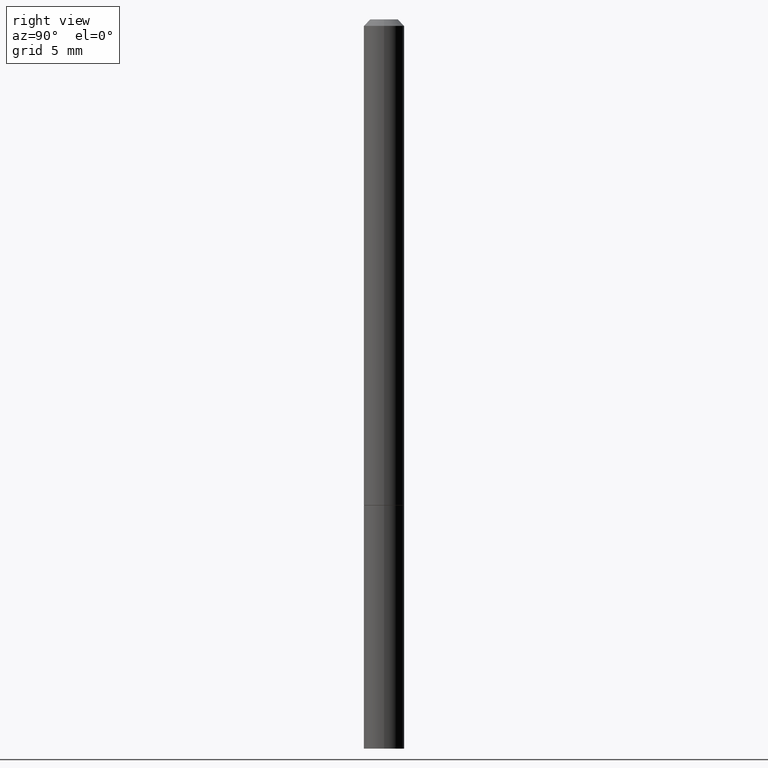
[diagram: clean part render]
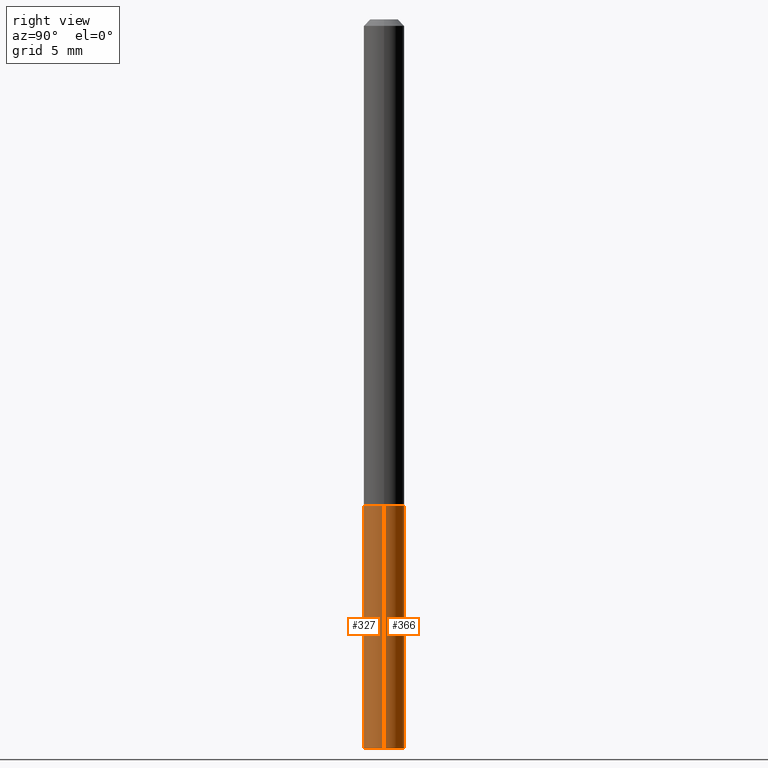
[diagram: same view with one multi-face feature highlighted, each face labeled with its STEP entity id]
A machine part, right view. The highlighted faces form ONE feature: a constant-radius fillet chain: 2 tangent blend faces with common blend radius 1.5875 mm. The faces share edges in the B-rep.
Their STEP definitions:
[1] entity #327 (Cylinder):
#6 = CYLINDRICAL_SURFACE ( 'NONE', #165, 0.06250000000000001388 ) ;
#15 = VERTEX_POINT ( 'NONE', #324 ) ;
#40 = AXIS2_PLACEMENT_3D ( 'NONE', #303, #41, #159 ) ;
#41 = DIRECTION ( 'NONE',  ( -2.445468806185136597E-29, 3.491481338843145583E-15, 1.000000000000000000 ) ) ;
#44 = LINE ( 'NONE', #161, #149 ) ;
#58 = CARTESIAN_POINT ( 'NONE',  ( 0.06249999999999992367, -8.284614137257799171E-15, -2.250000000000000444 ) ) ;
#63 = CARTESIAN_POINT ( 'NONE',  ( 0.06250000000000001388, -4.364351673553918173E-16, 3.047610484872460571E-30 ) ) ;
#74 = ORIENTED_EDGE ( 'NONE', *, *, #86, .F. ) ;
#78 = ORIENTED_EDGE ( 'NONE', *, *, #356, .F. ) ;
#86 = EDGE_CURVE ( 'NONE', #235, #15, #121, .T. ) ;
#100 = FACE_OUTER_BOUND ( 'NONE', #200, .T. ) ;
#121 = CIRCLE ( 'NONE', #308, 0.06250000000000001388 ) ;
#123 = DIRECTION ( 'NONE',  ( -2.445468806185136877E-29, 3.491481338843145188E-15, 1.000000000000000000 ) ) ;
#146 = CARTESIAN_POINT ( 'NONE',  ( -0.06250000000000001388, -6.102438300480836091E-15, -1.500000000000000444 ) ) ;
#149 = VECTOR ( 'NONE', #279, 39.37007874015748143 ) ;
#153 = DIRECTION ( 'NONE',  ( -2.445468806185136597E-29, 3.491481338843145583E-15, 1.000000000000000000 ) ) ;
#159 = DIRECTION ( 'NONE',  ( 1.000000000000000000, -6.982962677686261189E-15, 0.000000000000000000 ) ) ;
#161 = CARTESIAN_POINT ( 'NONE',  ( -0.06250000000000001388, 4.440892098500627148E-16, -3.074334431409317165E-30 ) ) ;
#165 = AXIS2_PLACEMENT_3D ( 'NONE', #190, #153, #251 ) ;
#169 = DIRECTION ( 'NONE',  ( 1.000000000000000000, -6.982962677686261189E-15, 0.000000000000000000 ) ) ;
#183 = CARTESIAN_POINT ( 'NONE',  ( -0.06249999999999992367, -7.419397845041688357E-15, -2.250000000000000444 ) ) ;
#190 = CARTESIAN_POINT ( 'NONE',  ( 0.000000000000000000, 0.000000000000000000, 0.000000000000000000 ) ) ;
#194 = EDGE_CURVE ( 'NONE', #227, #15, #214, .T. ) ;
#200 = EDGE_LOOP ( 'NONE', ( #78, #205, #357, #74 ) ) ;
#205 = ORIENTED_EDGE ( 'NONE', *, *, #330, .T. ) ;
#214 = LINE ( 'NONE', #63, #238 ) ;
#227 = VERTEX_POINT ( 'NONE', #58 ) ;
#235 = VERTEX_POINT ( 'NONE', #146 ) ;
#238 = VECTOR ( 'NONE', #123, 39.37007874015748143 ) ;
#251 = DIRECTION ( 'NONE',  ( 1.000000000000000000, -6.982962677686267499E-15, 4.876176775795935793E-29 ) ) ;
#259 = DIRECTION ( 'NONE',  ( -2.445468806185136597E-29, 3.491481338843145583E-15, 1.000000000000000000 ) ) ;
#262 = VERTEX_POINT ( 'NONE', #183 ) ;
#266 = CARTESIAN_POINT ( 'NONE',  ( 3.668203209277706016E-29, -5.237222008264719754E-15, -1.500000000000000444 ) ) ;
#279 = DIRECTION ( 'NONE',  ( -2.445468806185136877E-29, 3.491481338843145188E-15, 1.000000000000000000 ) ) ;
#281 = CIRCLE ( 'NONE', #40, 0.06250000000000001388 ) ;
#303 = CARTESIAN_POINT ( 'NONE',  ( 5.502304813916558464E-29, -7.855833012397078448E-15, -2.250000000000000444 ) ) ;
#308 = AXIS2_PLACEMENT_3D ( 'NONE', #266, #259, #169 ) ;
#324 = CARTESIAN_POINT ( 'NONE',  ( 0.06250000000000001388, -5.673657175620110635E-15, -1.500000000000000444 ) ) ;
#327 = ADVANCED_FACE ( 'NONE', ( #100 ), #6, .T. ) ;
#330 = EDGE_CURVE ( 'NONE', #262, #227, #281, .T. ) ;
#356 = EDGE_CURVE ( 'NONE', #262, #235, #44, .T. ) ;
#357 = ORIENTED_EDGE ( 'NONE', *, *, #194, .T. ) ;
[2] entity #366 (Cylinder):
#15 = VERTEX_POINT ( 'NONE', #324 ) ;
#16 = AXIS2_PLACEMENT_3D ( 'NONE', #212, #240, #152 ) ;
#19 = FACE_OUTER_BOUND ( 'NONE', #204, .T. ) ;
#23 = CARTESIAN_POINT ( 'NONE',  ( 3.668203209277706016E-29, -5.237222008264719754E-15, -1.500000000000000444 ) ) ;
#44 = LINE ( 'NONE', #161, #149 ) ;
#48 = AXIS2_PLACEMENT_3D ( 'NONE', #23, #389, #207 ) ;
#58 = CARTESIAN_POINT ( 'NONE',  ( 0.06249999999999992367, -8.284614137257799171E-15, -2.250000000000000444 ) ) ;
#63 = CARTESIAN_POINT ( 'NONE',  ( 0.06250000000000001388, -4.364351673553918173E-16, 3.047610484872460571E-30 ) ) ;
#70 = EDGE_CURVE ( 'NONE', #15, #235, #258, .T. ) ;
#123 = DIRECTION ( 'NONE',  ( -2.445468806185136877E-29, 3.491481338843145188E-15, 1.000000000000000000 ) ) ;
#146 = CARTESIAN_POINT ( 'NONE',  ( -0.06250000000000001388, -6.102438300480836091E-15, -1.500000000000000444 ) ) ;
#149 = VECTOR ( 'NONE', #279, 39.37007874015748143 ) ;
#152 = DIRECTION ( 'NONE',  ( 1.000000000000000000, -6.982962677686261189E-15, 0.000000000000000000 ) ) ;
#161 = CARTESIAN_POINT ( 'NONE',  ( -0.06250000000000001388, 4.440892098500627148E-16, -3.074334431409317165E-30 ) ) ;
#172 = CIRCLE ( 'NONE', #16, 0.06250000000000001388 ) ;
#175 = EDGE_CURVE ( 'NONE', #227, #262, #172, .T. ) ;
#183 = CARTESIAN_POINT ( 'NONE',  ( -0.06249999999999992367, -7.419397845041688357E-15, -2.250000000000000444 ) ) ;
#189 = AXIS2_PLACEMENT_3D ( 'NONE', #197, #225, #373 ) ;
#194 = EDGE_CURVE ( 'NONE', #227, #15, #214, .T. ) ;
#197 = CARTESIAN_POINT ( 'NONE',  ( 0.000000000000000000, 0.000000000000000000, 0.000000000000000000 ) ) ;
#204 = EDGE_LOOP ( 'NONE', ( #226, #286, #390, #347 ) ) ;
#207 = DIRECTION ( 'NONE',  ( 1.000000000000000000, -6.982962677686261189E-15, 0.000000000000000000 ) ) ;
#212 = CARTESIAN_POINT ( 'NONE',  ( 5.502304813916558464E-29, -7.855833012397078448E-15, -2.250000000000000444 ) ) ;
#214 = LINE ( 'NONE', #63, #238 ) ;
#225 = DIRECTION ( 'NONE',  ( -2.445468806185136597E-29, 3.491481338843145583E-15, 1.000000000000000000 ) ) ;
#226 = ORIENTED_EDGE ( 'NONE', *, *, #175, .T. ) ;
#227 = VERTEX_POINT ( 'NONE', #58 ) ;
#235 = VERTEX_POINT ( 'NONE', #146 ) ;
#238 = VECTOR ( 'NONE', #123, 39.37007874015748143 ) ;
#240 = DIRECTION ( 'NONE',  ( -2.445468806185136597E-29, 3.491481338843145583E-15, 1.000000000000000000 ) ) ;
#258 = CIRCLE ( 'NONE', #48, 0.06250000000000001388 ) ;
#262 = VERTEX_POINT ( 'NONE', #183 ) ;
#279 = DIRECTION ( 'NONE',  ( -2.445468806185136877E-29, 3.491481338843145188E-15, 1.000000000000000000 ) ) ;
#286 = ORIENTED_EDGE ( 'NONE', *, *, #356, .T. ) ;
#317 = CYLINDRICAL_SURFACE ( 'NONE', #189, 0.06250000000000001388 ) ;
#324 = CARTESIAN_POINT ( 'NONE',  ( 0.06250000000000001388, -5.673657175620110635E-15, -1.500000000000000444 ) ) ;
#347 = ORIENTED_EDGE ( 'NONE', *, *, #194, .F. ) ;
#356 = EDGE_CURVE ( 'NONE', #262, #235, #44, .T. ) ;
#366 = ADVANCED_FACE ( 'NONE', ( #19 ), #317, .T. ) ;
#373 = DIRECTION ( 'NONE',  ( 1.000000000000000000, -6.982962677686267499E-15, 4.876176775795935793E-29 ) ) ;
#389 = DIRECTION ( 'NONE',  ( -2.445468806185136597E-29, 3.491481338843145583E-15, 1.000000000000000000 ) ) ;
#390 = ORIENTED_EDGE ( 'NONE', *, *, #70, .F. ) ;